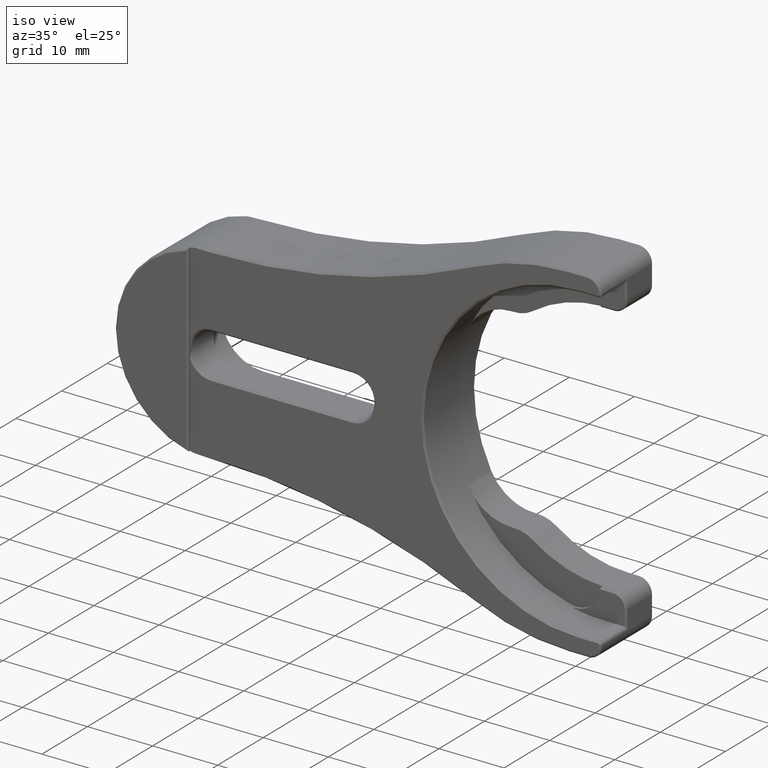
[diagram: clean part render]
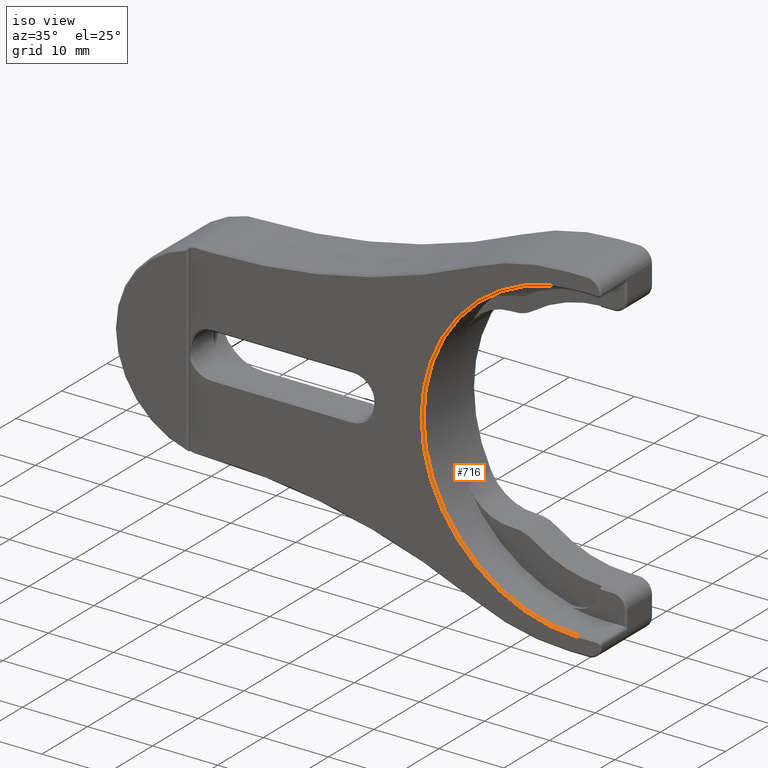
[diagram: same view with one face highlighted and labeled with its STEP entity id]
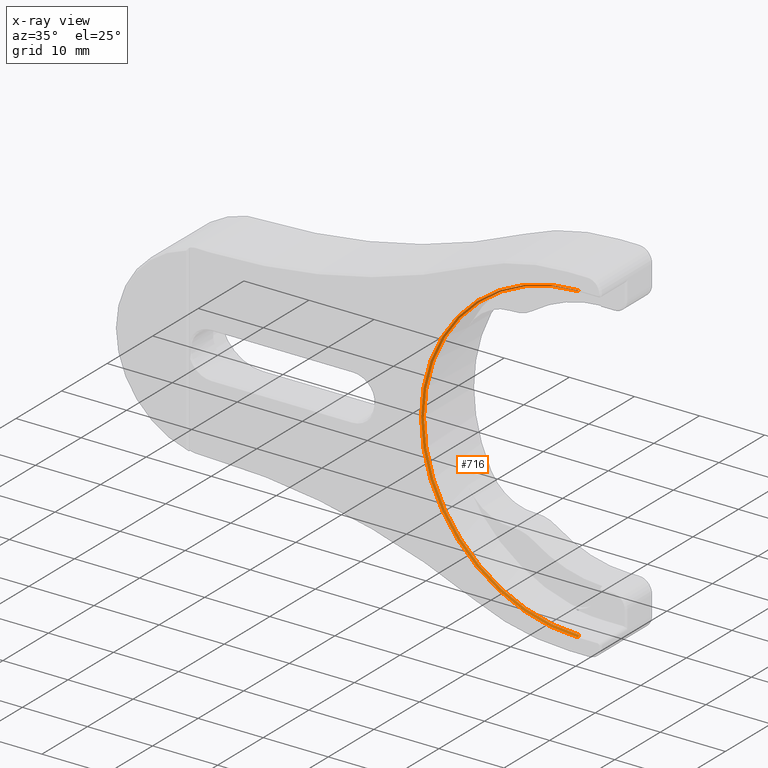
[diagram: x-ray of the same camera — body ghosted, the highlighted face saturated]
A machine part, iso view. The second image highlights one B-rep face of the part: STEP entity #716.
The next image is the same camera in x-ray: the body ghosted, the highlighted face saturated — about 0% of this face is hidden behind the body in this view.
In plain terms, the highlighted conical surface has half-angle 45 deg.
Its self-contained STEP definition (entity closure, byte-faithful):
#15 = CARTESIAN_POINT ( 'NONE',  ( 0.000000000000000000, 0.7500000000000006661, 23.85000000000000142 ) ) ;
#172 = ORIENTED_EDGE ( 'NONE', *, *, #439, .F. ) ;
#246 = EDGE_LOOP ( 'NONE', ( #1659, #2122, #1907, #172 ) ) ;
#355 = DIRECTION ( 'NONE',  ( 0.000000000000000000, 0.000000000000000000, -1.000000000000000000 ) ) ;
#376 = VECTOR ( 'NONE', #1917, 1000.000000000000000 ) ;
#428 = EDGE_CURVE ( 'NONE', #992, #1774, #1790, .T. ) ;
#439 = EDGE_CURVE ( 'NONE', #2457, #1605, #2965, .T. ) ;
#568 = DIRECTION ( 'NONE',  ( 0.000000000000000000, 0.000000000000000000, -1.000000000000000000 ) ) ;
#654 = CONICAL_SURFACE ( 'NONE', #2626, 23.85000000000000142, 0.7853981633974621568 ) ;
#716 = ADVANCED_FACE ( 'NONE', ( #3103 ), #654, .F. ) ;
#784 = AXIS2_PLACEMENT_3D ( 'NONE', #1043, #1570, #355 ) ;
#823 = CARTESIAN_POINT ( 'NONE',  ( 0.000000000000000000, 0.7500000000000006661, 0.000000000000000000 ) ) ;
#902 = LINE ( 'NONE', #2460, #3303 ) ;
#903 = CARTESIAN_POINT ( 'NONE',  ( 0.000000000000000000, 0.5000000000000000000, 24.10000000000000853 ) ) ;
#992 = VERTEX_POINT ( 'NONE', #15 ) ;
#1043 = CARTESIAN_POINT ( 'NONE',  ( 0.000000000000000000, 0.5000000000000000000, 0.000000000000000000 ) ) ;
#1379 = CARTESIAN_POINT ( 'NONE',  ( 0.000000000000000000, 0.7500000000000006661, -23.85000000000000142 ) ) ;
#1509 = CARTESIAN_POINT ( 'NONE',  ( 0.000000000000000000, 0.5000000000000000000, 24.10000000000000853 ) ) ;
#1570 = DIRECTION ( 'NONE',  ( -0.000000000000000000, 1.000000000000000000, -0.000000000000000000 ) ) ;
#1605 = VERTEX_POINT ( 'NONE', #1509 ) ;
#1659 = ORIENTED_EDGE ( 'NONE', *, *, #1891, .T. ) ;
#1774 = VERTEX_POINT ( 'NONE', #1379 ) ;
#1790 = CIRCLE ( 'NONE', #2217, 23.85000000000000142 ) ;
#1829 = DIRECTION ( 'NONE',  ( 0.000000000000000000, -1.000000000000000000, 0.000000000000000000 ) ) ;
#1891 = EDGE_CURVE ( 'NONE', #2457, #1774, #902, .T. ) ;
#1907 = ORIENTED_EDGE ( 'NONE', *, *, #3238, .F. ) ;
#1917 = DIRECTION ( 'NONE',  ( 0.000000000000000000, 0.7071067811865383579, -0.7071067811865567876 ) ) ;
#1920 = DIRECTION ( 'NONE',  ( 0.000000000000000000, -1.000000000000000000, 0.000000000000000000 ) ) ;
#1963 = DIRECTION ( 'NONE',  ( 0.000000000000000000, 0.7071067811865383579, 0.7071067811865567876 ) ) ;
#2085 = CARTESIAN_POINT ( 'NONE',  ( 0.000000000000000000, 0.5000000000000000000, -24.10000000000000853 ) ) ;
#2122 = ORIENTED_EDGE ( 'NONE', *, *, #428, .F. ) ;
#2217 = AXIS2_PLACEMENT_3D ( 'NONE', #3157, #1920, #2322 ) ;
#2322 = DIRECTION ( 'NONE',  ( 0.000000000000000000, 0.000000000000000000, -1.000000000000000000 ) ) ;
#2457 = VERTEX_POINT ( 'NONE', #2085 ) ;
#2460 = CARTESIAN_POINT ( 'NONE',  ( 0.000000000000000000, 0.5000000000000000000, -24.10000000000000853 ) ) ;
#2626 = AXIS2_PLACEMENT_3D ( 'NONE', #823, #1829, #568 ) ;
#2965 = CIRCLE ( 'NONE', #784, 24.10000000000000853 ) ;
#3103 = FACE_OUTER_BOUND ( 'NONE', #246, .T. ) ;
#3157 = CARTESIAN_POINT ( 'NONE',  ( 0.000000000000000000, 0.7500000000000006661, 0.000000000000000000 ) ) ;
#3187 = LINE ( 'NONE', #903, #376 ) ;
#3238 = EDGE_CURVE ( 'NONE', #1605, #992, #3187, .T. ) ;
#3303 = VECTOR ( 'NONE', #1963, 1000.000000000000000 ) ;